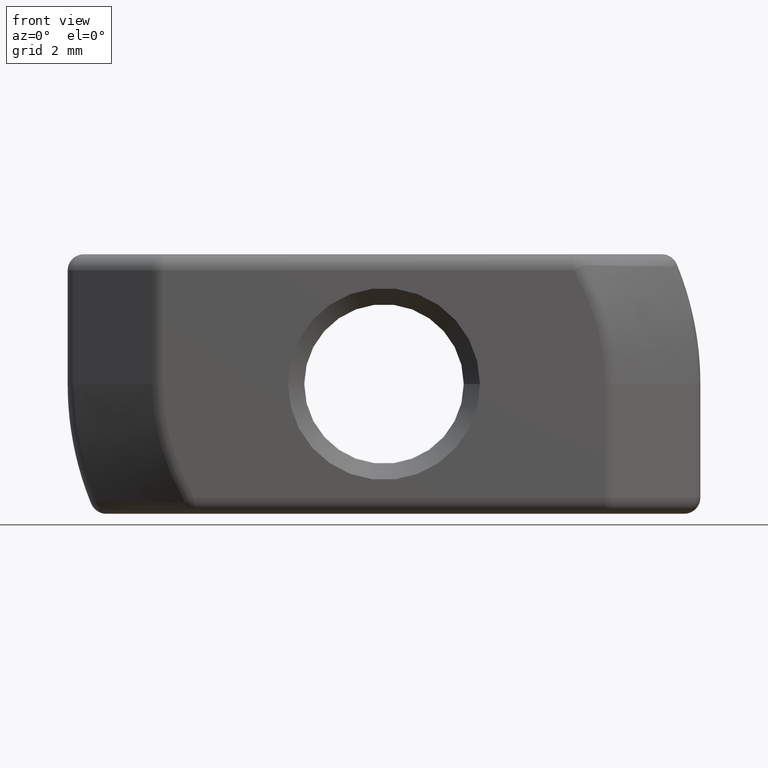
[diagram: clean part render]
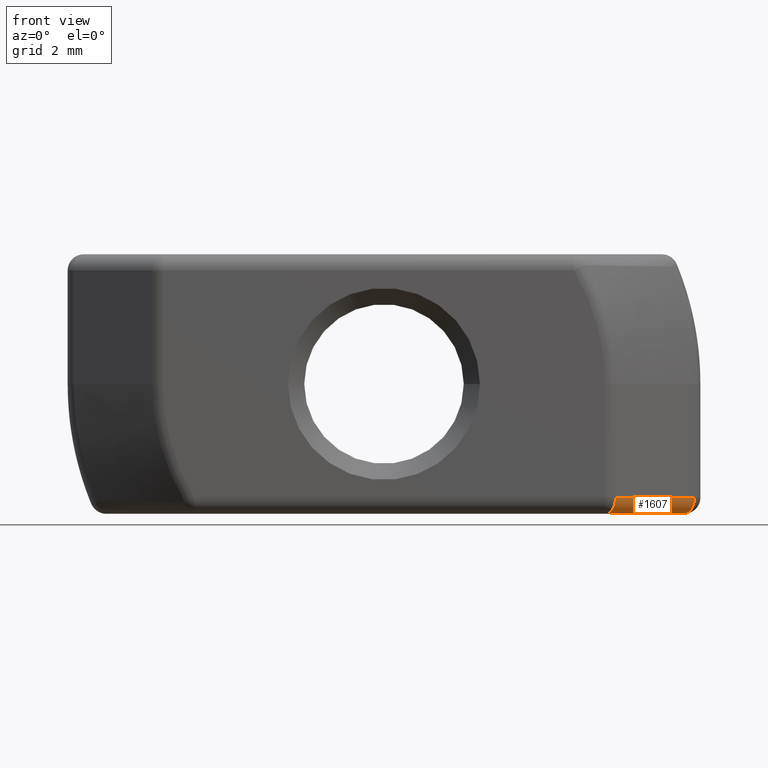
[diagram: same view with one face highlighted and labeled with its STEP entity id]
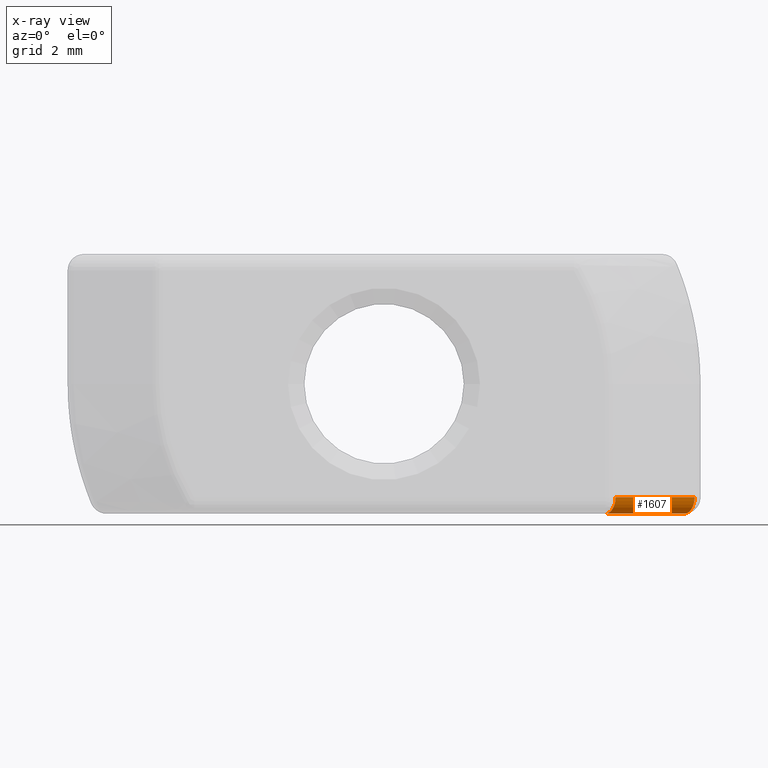
[diagram: x-ray of the same camera — body ghosted, the highlighted face saturated]
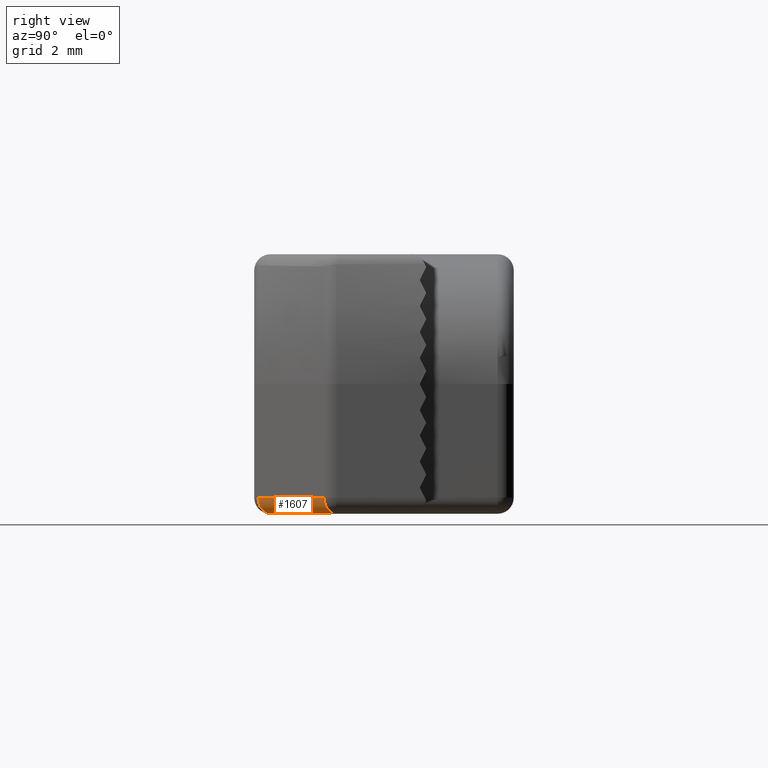
[diagram: same view with one face highlighted and labeled with its STEP entity id]
A machine part, front view. The second image highlights one B-rep face of the part: STEP entity #1607.
The next image is the same camera in x-ray: the body ghosted, the highlighted face saturated — about 0% of this face is hidden behind the body in this view.
A second angle (right view) of the same face is appended — the face is thin or edge-on in the first view.
In plain terms, the highlighted cylindrical surface (edge-blend (fillet) strip) has radius 0.5 mm, axis along (-0.7671, -0.6416, 0).
Its self-contained STEP definition (entity closure, byte-faithful):
#101=LINE('',#2466,#231);
#138=LINE('',#2719,#268);
#231=VECTOR('',#1921,3.16986493998181);
#268=VECTOR('',#2140,3.16986493998181);
#416=CYLINDRICAL_SURFACE('',#1776,0.5);
#470=FACE_OUTER_BOUND('',#574,.T.);
#574=EDGE_LOOP('',(#1263,#1264,#1265,#1266));
#673=CIRCLE('',#1756,0.5);
#682=CIRCLE('',#1770,0.5);
#711=VERTEX_POINT('',#2463);
#712=VERTEX_POINT('',#2465);
#769=VERTEX_POINT('',#2664);
#773=VERTEX_POINT('',#2706);
#860=EDGE_CURVE('',#712,#711,#101,.T.);
#945=EDGE_CURVE('',#769,#712,#673,.F.);
#956=EDGE_CURVE('',#711,#773,#682,.F.);
#962=EDGE_CURVE('',#773,#769,#138,.T.);
#1263=ORIENTED_EDGE('',*,*,#945,.T.);
#1264=ORIENTED_EDGE('',*,*,#860,.T.);
#1265=ORIENTED_EDGE('',*,*,#956,.T.);
#1266=ORIENTED_EDGE('',*,*,#962,.T.);
#1607=ADVANCED_FACE('',(#470),#416,.T.);
#1756=AXIS2_PLACEMENT_3D('',#2665,#2095,#2096);
#1770=AXIS2_PLACEMENT_3D('',#2708,#2124,#2125);
#1776=AXIS2_PLACEMENT_3D('',#2718,#2138,#2139);
#1921=DIRECTION('',(0.767076870152409,0.641555200491106,0.));
#2095=DIRECTION('center_axis',(-0.76707687015241,-0.641555200491106,3.12779151610768E-15));
#2096=DIRECTION('ref_axis',(0.641555200491106,-0.76707687015241,0.));
#2124=DIRECTION('center_axis',(0.76707687015241,0.641555200491105,0.));
#2125=DIRECTION('ref_axis',(0.,0.,-1.));
#2138=DIRECTION('center_axis',(-0.76707687015241,-0.641555200491106,0.));
#2139=DIRECTION('ref_axis',(0.453648032772755,-0.542405256576123,-0.707106781186547));
#2140=DIRECTION('',(-0.767076870152409,-0.641555200491106,0.));
#2463=CARTESIAN_POINT('',(9.25,-2.76635666290024,-4.));
#2465=CARTESIAN_POINT('',(6.8184699230329,-4.8,-4.));
#2466=CARTESIAN_POINT('',(5.52666250491495,-5.88042074969865,-4.));
#2664=CARTESIAN_POINT('',(7.13924752327845,-5.18353843507621,-3.5));
#2665=CARTESIAN_POINT('Origin',(6.8184699230329,-4.8,-3.5));
#2706=CARTESIAN_POINT('',(9.57077760024555,-3.14989509797645,-3.5));
#2708=CARTESIAN_POINT('Origin',(9.25,-2.76635666290024,-3.5));
#2718=CARTESIAN_POINT('Origin',(5.52666250491495,-5.88042074969865,-3.5));
#2719=CARTESIAN_POINT('',(5.84744010516051,-6.26395918477485,-3.5));